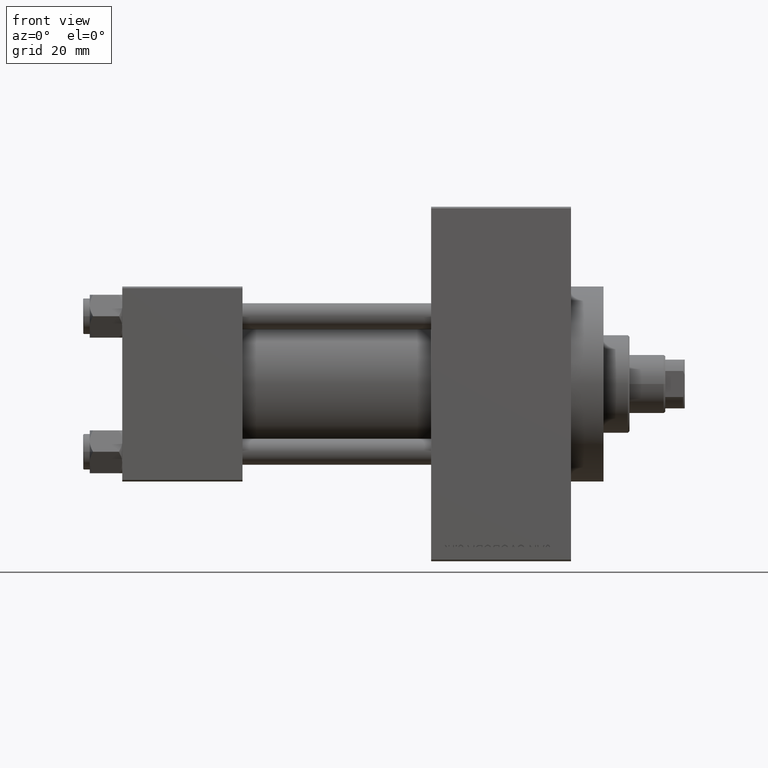
[diagram: clean part render]
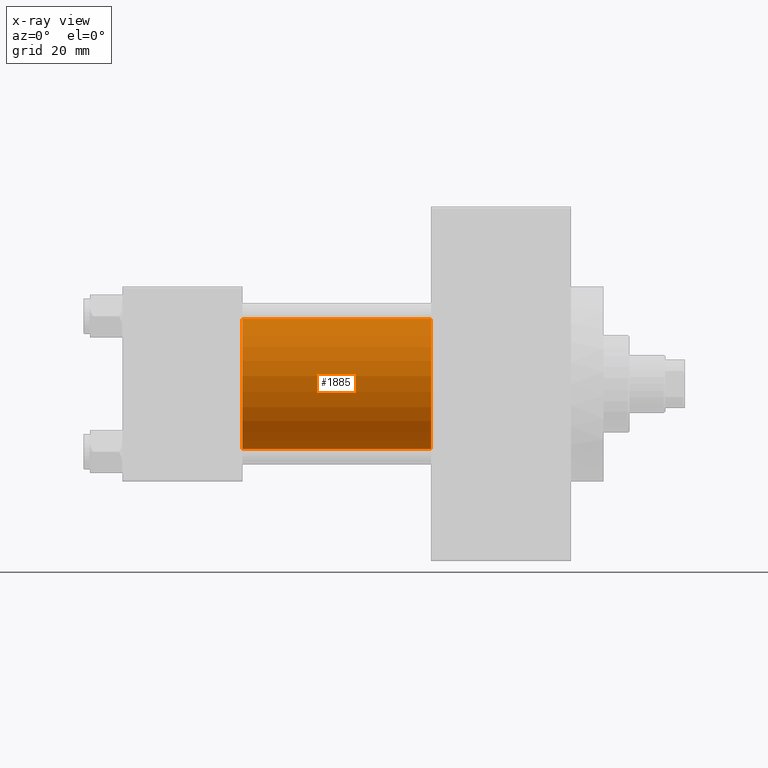
[diagram: x-ray — body ghosted, one internal face saturated and labeled with its STEP entity id]
A machine part, front view, then the same camera in x-ray: the body is ghosted and one INTERNAL B-rep face — a face not visible from any outside direction — is saturated and labeled: STEP entity #1885.
In plain terms, the highlighted cylindrical surface (partial cylindrical patch) has radius 20 mm, axis along (-1, -0, -0).
Its self-contained STEP definition (entity closure, byte-faithful):
#1885 = ADVANCED_FACE ( 'NONE', ( #11319 ), #26552, .F. ) ;
#2470 = DIRECTION ( 'NONE',  ( 1.000000000000000000, 0.000000000000000000, 0.000000000000000000 ) ) ;
#2833 = VECTOR ( 'NONE', #25779, 1000.000000000000000 ) ;
#4095 = CARTESIAN_POINT ( 'NONE',  ( 95.00000000000000000, -2.602085213965210642E-15, 0.000000000000000000 ) ) ;
#5525 = DIRECTION ( 'NONE',  ( -1.000000000000000000, -0.000000000000000000, -0.000000000000000000 ) ) ;
#5653 = EDGE_CURVE ( 'NONE', #17803, #24173, #29969, .T. ) ;
#5773 = CARTESIAN_POINT ( 'NONE',  ( 95.00000000000000000, -1.527916156705046464E-16, -20.00000000000000000 ) ) ;
#7588 = DIRECTION ( 'NONE',  ( 0.000000000000000000, 0.000000000000000000, 1.000000000000000000 ) ) ;
#7642 = AXIS2_PLACEMENT_3D ( 'NONE', #11751, #48674, #49167 ) ;
#10430 = DIRECTION ( 'NONE',  ( 0.000000000000000000, 0.000000000000000000, -1.000000000000000000 ) ) ;
#11319 = FACE_OUTER_BOUND ( 'NONE', #18766, .T. ) ;
#11587 = EDGE_CURVE ( 'NONE', #34100, #24173, #32214, .T. ) ;
#11751 = CARTESIAN_POINT ( 'NONE',  ( 37.00000000000000000, -2.602085213965210642E-15, 0.000000000000000000 ) ) ;
#15023 = LINE ( 'NONE', #30254, #2833 ) ;
#15288 = ORIENTED_EDGE ( 'NONE', *, *, #41264, .F. ) ;
#15466 = AXIS2_PLACEMENT_3D ( 'NONE', #4095, #41750, #7588 ) ;
#17803 = VERTEX_POINT ( 'NONE', #36902 ) ;
#18766 = EDGE_LOOP ( 'NONE', ( #25569, #34389, #23425, #15288 ) ) ;
#20917 = CARTESIAN_POINT ( 'NONE',  ( 37.00000000000000000, -1.527916156705046464E-16, -20.00000000000000000 ) ) ;
#21431 = CARTESIAN_POINT ( 'NONE',  ( 95.00000000000000000, -2.602085213965210642E-15, 0.000000000000000000 ) ) ;
#21972 = AXIS2_PLACEMENT_3D ( 'NONE', #21431, #2470, #10430 ) ;
#23425 = ORIENTED_EDGE ( 'NONE', *, *, #5653, .F. ) ;
#24173 = VERTEX_POINT ( 'NONE', #20917 ) ;
#25284 = VECTOR ( 'NONE', #5525, 1000.000000000000000 ) ;
#25569 = ORIENTED_EDGE ( 'NONE', *, *, #44752, .T. ) ;
#25779 = DIRECTION ( 'NONE',  ( -1.000000000000000000, -0.000000000000000000, -0.000000000000000000 ) ) ;
#25790 = CARTESIAN_POINT ( 'NONE',  ( 95.00000000000000000, -2.602085213965210642E-15, 20.00000000000000000 ) ) ;
#26423 = VERTEX_POINT ( 'NONE', #25790 ) ;
#26552 = CYLINDRICAL_SURFACE ( 'NONE', #15466, 20.00000000000000000 ) ;
#29494 = CARTESIAN_POINT ( 'NONE',  ( 95.00000000000000000, -1.527916156705046464E-16, -20.00000000000000000 ) ) ;
#29969 = CIRCLE ( 'NONE', #7642, 20.00000000000000000 ) ;
#30254 = CARTESIAN_POINT ( 'NONE',  ( 95.00000000000000000, -2.602085213965210642E-15, 20.00000000000000000 ) ) ;
#32214 = LINE ( 'NONE', #5773, #25284 ) ;
#34100 = VERTEX_POINT ( 'NONE', #29494 ) ;
#34389 = ORIENTED_EDGE ( 'NONE', *, *, #11587, .T. ) ;
#34709 = CIRCLE ( 'NONE', #21972, 20.00000000000000000 ) ;
#36902 = CARTESIAN_POINT ( 'NONE',  ( 37.00000000000000000, -2.602085213965210642E-15, 20.00000000000000000 ) ) ;
#41264 = EDGE_CURVE ( 'NONE', #26423, #17803, #15023, .T. ) ;
#41750 = DIRECTION ( 'NONE',  ( -1.000000000000000000, -0.000000000000000000, -0.000000000000000000 ) ) ;
#44752 = EDGE_CURVE ( 'NONE', #26423, #34100, #34709, .T. ) ;
#48674 = DIRECTION ( 'NONE',  ( 1.000000000000000000, 0.000000000000000000, 0.000000000000000000 ) ) ;
#49167 = DIRECTION ( 'NONE',  ( 0.000000000000000000, 0.000000000000000000, -1.000000000000000000 ) ) ;